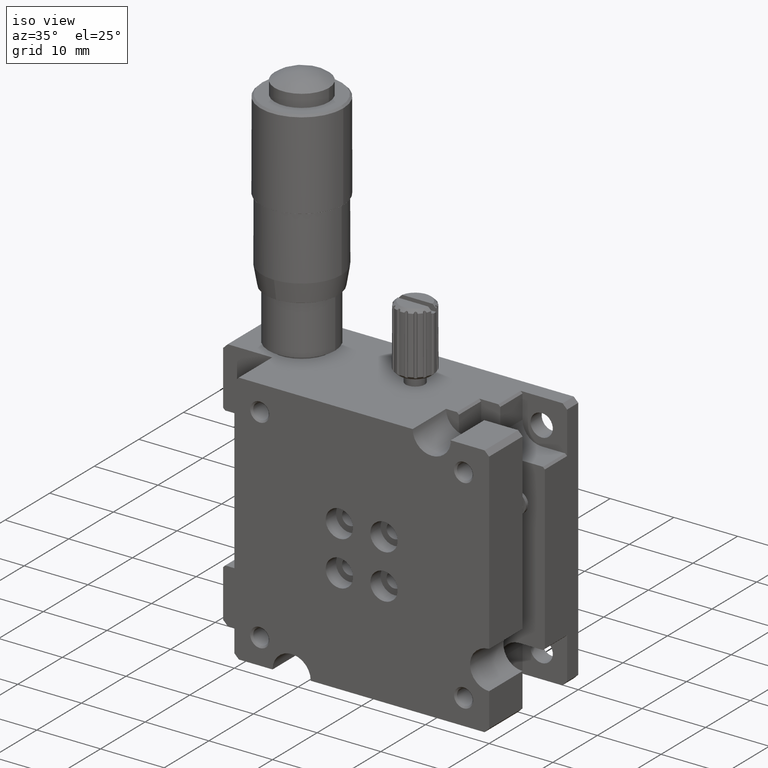
[diagram: clean part render]
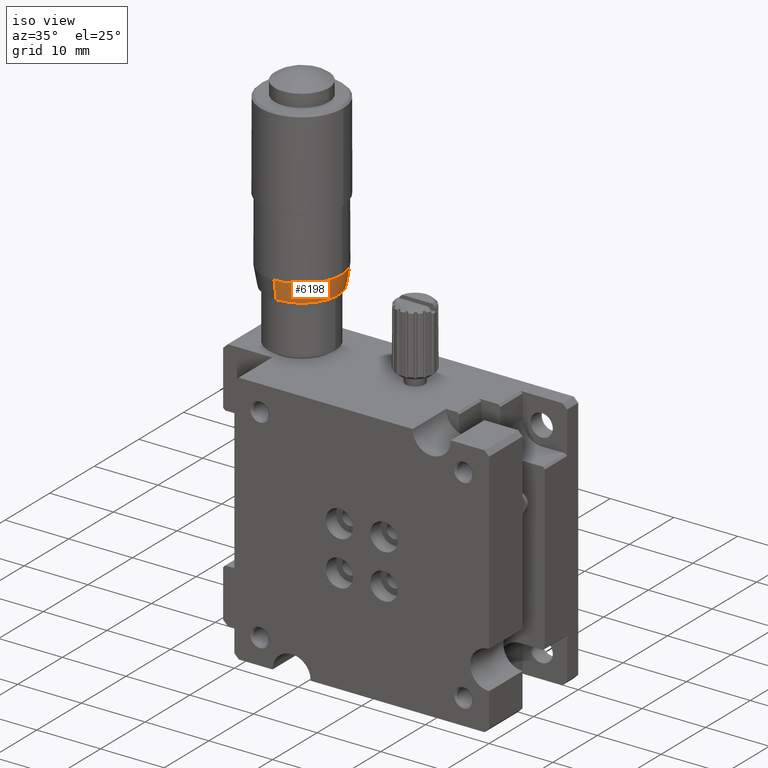
[diagram: same view with one face highlighted and labeled with its STEP entity id]
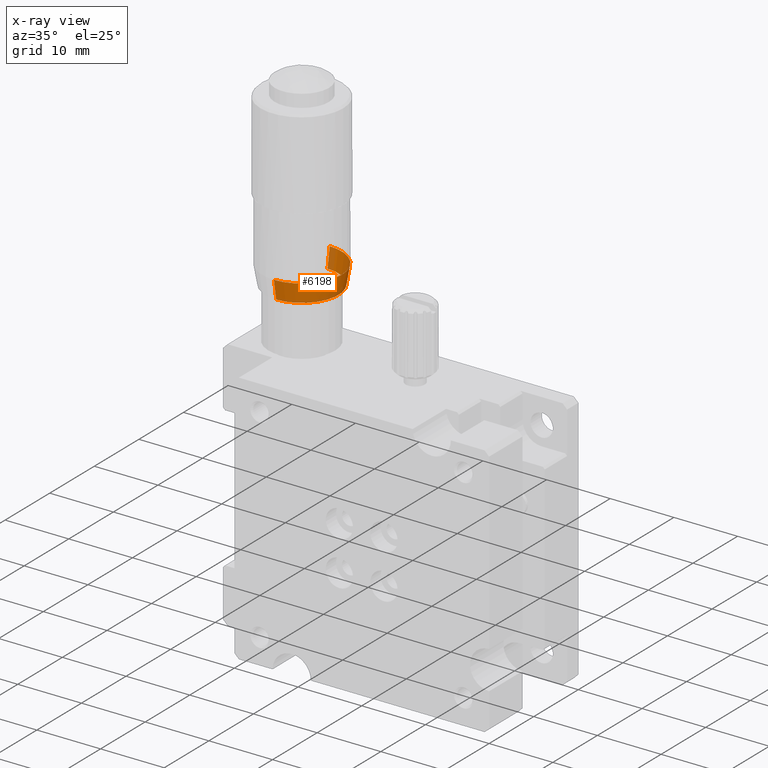
[diagram: x-ray of the same camera — body ghosted, the highlighted face saturated]
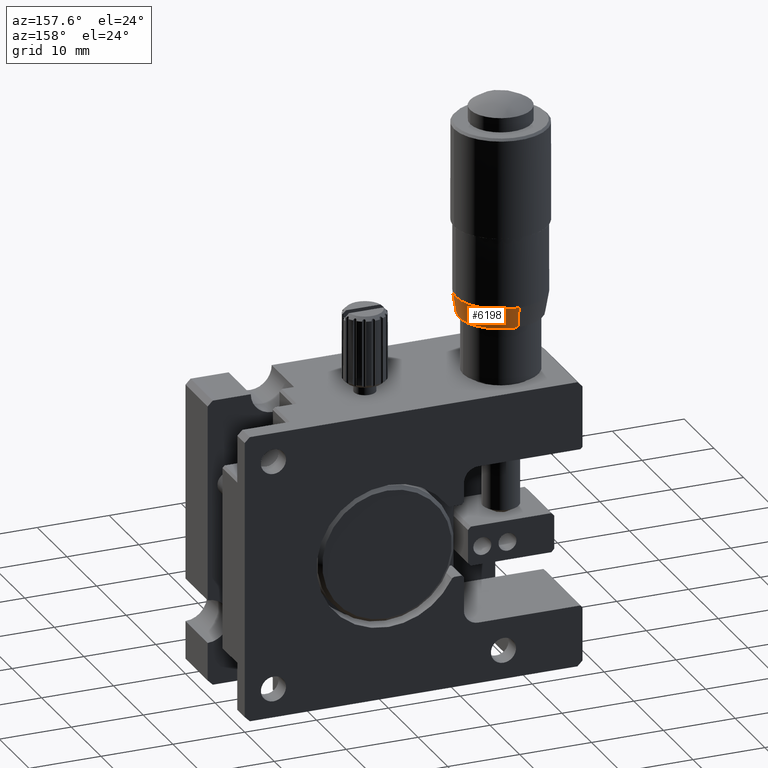
[diagram: same view with one face highlighted and labeled with its STEP entity id]
A machine part, iso view. The second image highlights one B-rep face of the part: STEP entity #6198.
The next image is the same camera in x-ray: the body ghosted, the highlighted face saturated — about 8% of this face is hidden behind the body in this view.
A second angle (auxiliary view) of the same face is appended — the face is thin or edge-on in the first view.
In plain terms, the highlighted conical surface has half-angle 9.456 deg.
Its self-contained STEP definition (entity closure, byte-faithful):
#886 = AXIS2_PLACEMENT_3D ( 'NONE', #8139, #8148, #8137 ) ;
#1043 = AXIS2_PLACEMENT_3D ( 'NONE', #8405, #8446, #8527 ) ;
#1769 = AXIS2_PLACEMENT_3D ( 'NONE', #7858, #7823, #7812 ) ;
#1986 = AXIS2_PLACEMENT_3D ( 'NONE', #8517, #8544, #8529 ) ;
#2019 = EDGE_LOOP ( 'NONE', ( #2508, #2437, #2420, #2528, #2474 ) ) ;
#2420 = ORIENTED_EDGE ( 'NONE', *, *, #6907, .F. ) ;
#2437 = ORIENTED_EDGE ( 'NONE', *, *, #10201, .T. ) ;
#2474 = ORIENTED_EDGE ( 'NONE', *, *, #10169, .F. ) ;
#2508 = ORIENTED_EDGE ( 'NONE', *, *, #10195, .T. ) ;
#2528 = ORIENTED_EDGE ( 'NONE', *, *, #10165, .F. ) ;
#3274 = DIRECTION ( 'NONE',  ( 2.011996603865812800E-017, 0.1642919905777437100, 0.9864117506558822700 ) ) ;
#3293 = CARTESIAN_POINT ( 'NONE',  ( 1.500000000000002700, 19.24999999999431200, 11.49999999993269700 ) ) ;
#3528 = VERTEX_POINT ( 'NONE', #5501 ) ;
#3531 = VERTEX_POINT ( 'NONE', #5472 ) ;
#3617 = VERTEX_POINT ( 'NONE', #7888 ) ;
#3626 = VERTEX_POINT ( 'NONE', #7907 ) ;
#3631 = VERTEX_POINT ( 'NONE', #7895 ) ;
#5472 = CARTESIAN_POINT ( 'NONE',  ( 1.500000000000002400, 18.75200000004088000, 8.509999999978388600 ) ) ;
#5501 = CARTESIAN_POINT ( 'NONE',  ( 1.500000000000001800, 7.247999999959122700, 8.509999999978388600 ) ) ;
#6198 = ADVANCED_FACE ( 'NONE', ( #9862 ), #9814, .T. ) ;
#6907 = EDGE_CURVE ( 'NONE', #3617, #3626, #8896, .T. ) ;
#7812 = DIRECTION ( 'NONE',  ( 0.0000000000000000000, -1.000000000000000000, -2.775557561565416700E-016 ) ) ;
#7823 = DIRECTION ( 'NONE',  ( -0.0000000000000000000, -2.775557561565416700E-016, 1.000000000000000000 ) ) ;
#7858 = CARTESIAN_POINT ( 'NONE',  ( 1.500000000000001800, 13.00000000000000200, 11.49999999993269600 ) ) ;
#7888 = CARTESIAN_POINT ( 'NONE',  ( 7.750000000000001800, 13.00000000000000200, 11.49999999999999600 ) ) ;
#7895 = CARTESIAN_POINT ( 'NONE',  ( 1.500000000000001800, 6.749999999994477300, 11.49999999999999600 ) ) ;
#7907 = CARTESIAN_POINT ( 'NONE',  ( 1.500000000000002700, 19.25000000000552400, 11.49999999999999600 ) ) ;
#8137 = DIRECTION ( 'NONE',  ( -1.000000000000000000, 0.0000000000000000000, 0.0000000000000000000 ) ) ;
#8138 = DIRECTION ( 'NONE',  ( 0.0000000000000000000, -0.1642919905777442400, 0.9864117506558821600 ) ) ;
#8139 = CARTESIAN_POINT ( 'NONE',  ( 1.500000000000001600, 13.00000000000000200, 11.49999999999999600 ) ) ;
#8141 = CARTESIAN_POINT ( 'NONE',  ( 1.500000000000001800, 6.750000000005687000, 11.49999999993269400 ) ) ;
#8148 = DIRECTION ( 'NONE',  ( -6.123233995736769700E-017, -0.0000000000000000000, 1.000000000000000000 ) ) ;
#8405 = CARTESIAN_POINT ( 'NONE',  ( 1.500000000000001800, 13.00000000000000200, 8.509999999978388600 ) ) ;
#8446 = DIRECTION ( 'NONE',  ( -6.123233995736769700E-017, 0.0000000000000000000, 1.000000000000000000 ) ) ;
#8517 = CARTESIAN_POINT ( 'NONE',  ( 1.500000000000001600, 13.00000000000000200, 11.49999999999999600 ) ) ;
#8527 = DIRECTION ( 'NONE',  ( 1.000000000000000000, 0.0000000000000000000, 0.0000000000000000000 ) ) ;
#8529 = DIRECTION ( 'NONE',  ( -1.000000000000000000, 0.0000000000000000000, 0.0000000000000000000 ) ) ;
#8544 = DIRECTION ( 'NONE',  ( -6.123233995736769700E-017, -0.0000000000000000000, 1.000000000000000000 ) ) ;
#8896 = CIRCLE ( 'NONE', #1986, 6.250000000000000000 ) ;
#9173 = VECTOR ( 'NONE', #8138, 1000.000000000000100 ) ;
#9185 = LINE ( 'NONE', #8141, #9173 ) ;
#9208 = CIRCLE ( 'NONE', #886, 6.250000000000000000 ) ;
#9236 = LINE ( 'NONE', #3293, #9295 ) ;
#9292 = CIRCLE ( 'NONE', #1043, 5.752000000001087800 ) ;
#9295 = VECTOR ( 'NONE', #3274, 1000.000000000000200 ) ;
#9814 = CONICAL_SURFACE ( 'NONE', #1769, 6.249999999994313900, 0.1650402057806569500 ) ;
#9862 = FACE_OUTER_BOUND ( 'NONE', #2019, .T. ) ;
#10165 = EDGE_CURVE ( 'NONE', #3631, #3617, #9208, .T. ) ;
#10169 = EDGE_CURVE ( 'NONE', #3528, #3631, #9185, .T. ) ;
#10195 = EDGE_CURVE ( 'NONE', #3528, #3531, #9292, .T. ) ;
#10201 = EDGE_CURVE ( 'NONE', #3531, #3626, #9236, .T. ) ;